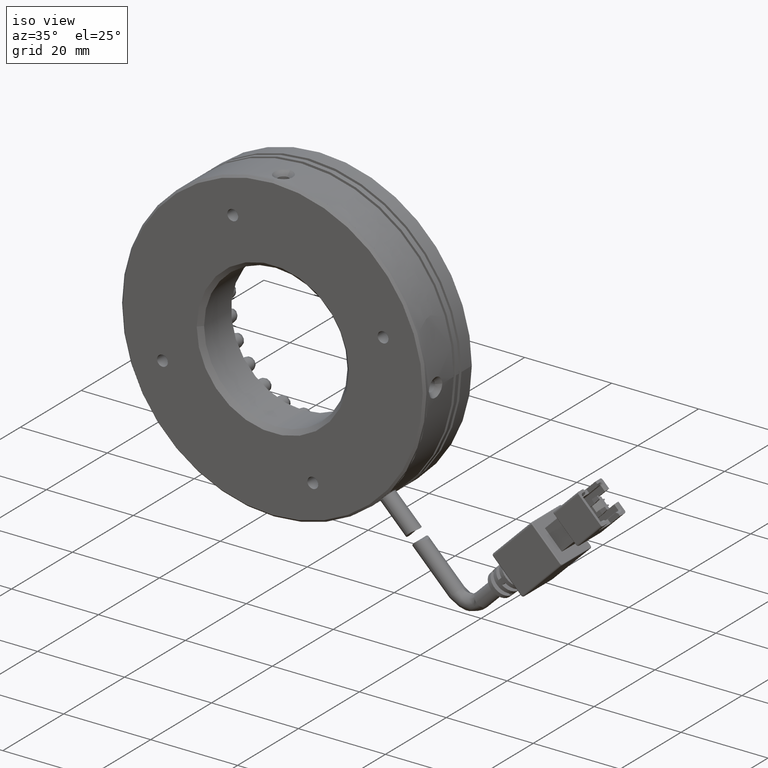
[diagram: clean part render]
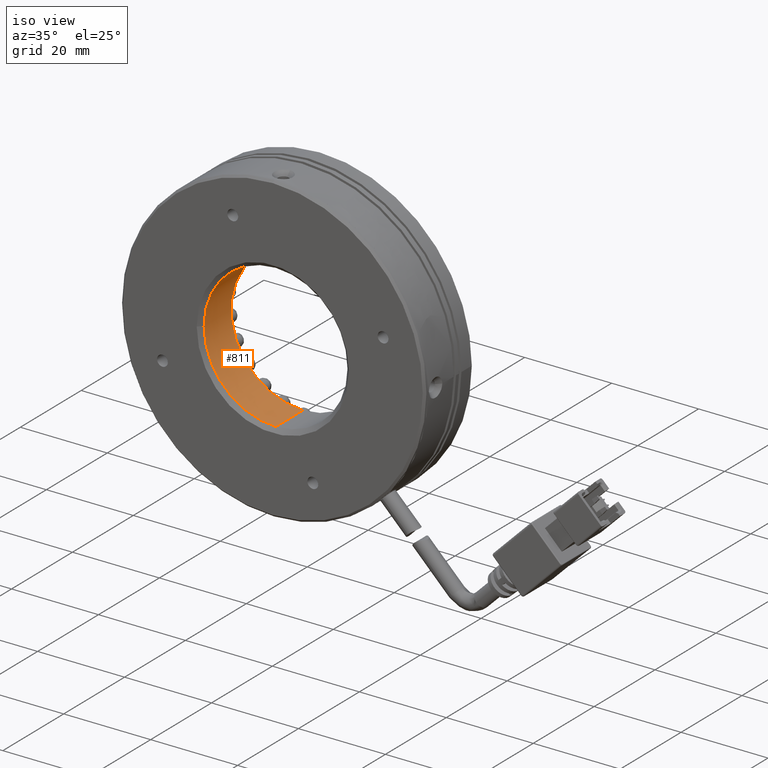
[diagram: same view with one face highlighted and labeled with its STEP entity id]
A machine part, iso view. The second image highlights one B-rep face of the part: STEP entity #811.
In plain terms, the highlighted cylindrical surface (partial cylindrical patch) has radius 16.5 mm, axis along (-0, 1, -0).
Its self-contained STEP definition (entity closure, byte-faithful):
#811 = ADVANCED_FACE ( 'NONE', ( #64937 ), #25000, .F. ) ;
#3630 = DIRECTION ( 'NONE',  ( 0.0000000000000000000, -1.000000000000000000, 0.0000000000000000000 ) ) ;
#3745 = CIRCLE ( 'NONE', #80643, 16.50000000000000700 ) ;
#5038 = CARTESIAN_POINT ( 'NONE',  ( -41.42313932795384100, -3.279814118401988700, 2.081899558550501900E-015 ) ) ;
#10731 = DIRECTION ( 'NONE',  ( -0.0000000000000000000, -1.000000000000000000, -0.0000000000000000000 ) ) ;
#11252 = CARTESIAN_POINT ( 'NONE',  ( -24.92313932795383400, 5.620185881597988600, 16.50000000000000700 ) ) ;
#16292 = DIRECTION ( 'NONE',  ( -0.0000000000000000000, -1.000000000000000000, -0.0000000000000000000 ) ) ;
#16679 = CARTESIAN_POINT ( 'NONE',  ( -24.92313932795383000, 5.620185881597988600, -16.50000000000000700 ) ) ;
#18421 = DIRECTION ( 'NONE',  ( -0.0000000000000000000, 1.000000000000000000, -0.0000000000000000000 ) ) ;
#19709 = AXIS2_PLACEMENT_3D ( 'NONE', #75708, #29848, #64781 ) ;
#20340 = CARTESIAN_POINT ( 'NONE',  ( -24.92313932795383400, -3.279814118401988700, 16.50000000000000700 ) ) ;
#22490 = LINE ( 'NONE', #51074, #55324 ) ;
#23843 = LINE ( 'NONE', #31946, #37092 ) ;
#24762 = ORIENTED_EDGE ( 'NONE', *, *, #70832, .T. ) ;
#25000 = CYLINDRICAL_SURFACE ( 'NONE', #19709, 16.50000000000000700 ) ;
#25210 = AXIS2_PLACEMENT_3D ( 'NONE', #55592, #16292, #62161 ) ;
#26735 = VERTEX_POINT ( 'NONE', #69959 ) ;
#29848 = DIRECTION ( 'NONE',  ( -0.0000000000000000000, 1.000000000000000000, -0.0000000000000000000 ) ) ;
#30282 = ORIENTED_EDGE ( 'NONE', *, *, #60807, .T. ) ;
#31946 = CARTESIAN_POINT ( 'NONE',  ( -24.92313932795383000, 45.88112954314367200, -16.50000000000000700 ) ) ;
#37092 = VECTOR ( 'NONE', #77796, 1000.000000000000000 ) ;
#40848 = VERTEX_POINT ( 'NONE', #11252 ) ;
#42871 = CARTESIAN_POINT ( 'NONE',  ( -24.92313932795383400, 5.620185881597988600, 0.0000000000000000000 ) ) ;
#44346 = CIRCLE ( 'NONE', #81977, 16.50000000000000700 ) ;
#46753 = VERTEX_POINT ( 'NONE', #20340 ) ;
#49498 = DIRECTION ( 'NONE',  ( 0.0000000000000000000, 0.0000000000000000000, 1.000000000000000000 ) ) ;
#49989 = CARTESIAN_POINT ( 'NONE',  ( -24.92313932795383400, -3.279814118401988700, 0.0000000000000000000 ) ) ;
#51074 = CARTESIAN_POINT ( 'NONE',  ( -24.92313932795383400, 45.88112954314367200, 16.50000000000000700 ) ) ;
#52809 = ORIENTED_EDGE ( 'NONE', *, *, #70571, .F. ) ;
#55274 = EDGE_CURVE ( 'NONE', #70718, #26735, #3745, .T. ) ;
#55324 = VECTOR ( 'NONE', #18421, 1000.000000000000000 ) ;
#55592 = CARTESIAN_POINT ( 'NONE',  ( -24.92313932795383400, -3.279814118401988700, 0.0000000000000000000 ) ) ;
#56617 = DIRECTION ( 'NONE',  ( 0.0000000000000000000, 0.0000000000000000000, -1.000000000000000000 ) ) ;
#59878 = EDGE_LOOP ( 'NONE', ( #30282, #81842, #24762, #52809, #63762 ) ) ;
#60807 = EDGE_CURVE ( 'NONE', #46753, #70718, #74569, .T. ) ;
#62161 = DIRECTION ( 'NONE',  ( 0.0000000000000000000, 0.0000000000000000000, -1.000000000000000000 ) ) ;
#63762 = ORIENTED_EDGE ( 'NONE', *, *, #81733, .F. ) ;
#64781 = DIRECTION ( 'NONE',  ( 0.0000000000000000000, 0.0000000000000000000, 1.000000000000000000 ) ) ;
#64937 = FACE_OUTER_BOUND ( 'NONE', #59878, .T. ) ;
#69959 = CARTESIAN_POINT ( 'NONE',  ( -24.92313932795383000, -3.279814118401988700, -16.50000000000000700 ) ) ;
#70571 = EDGE_CURVE ( 'NONE', #40848, #79799, #44346, .T. ) ;
#70718 = VERTEX_POINT ( 'NONE', #5038 ) ;
#70832 = EDGE_CURVE ( 'NONE', #26735, #79799, #23843, .T. ) ;
#74569 = CIRCLE ( 'NONE', #25210, 16.50000000000000700 ) ;
#75708 = CARTESIAN_POINT ( 'NONE',  ( -24.92313932795383400, 45.88112954314367200, 0.0000000000000000000 ) ) ;
#77796 = DIRECTION ( 'NONE',  ( -0.0000000000000000000, 1.000000000000000000, -0.0000000000000000000 ) ) ;
#79799 = VERTEX_POINT ( 'NONE', #16679 ) ;
#80643 = AXIS2_PLACEMENT_3D ( 'NONE', #49989, #10731, #56617 ) ;
#81733 = EDGE_CURVE ( 'NONE', #46753, #40848, #22490, .T. ) ;
#81842 = ORIENTED_EDGE ( 'NONE', *, *, #55274, .T. ) ;
#81977 = AXIS2_PLACEMENT_3D ( 'NONE', #42871, #3630, #49498 ) ;